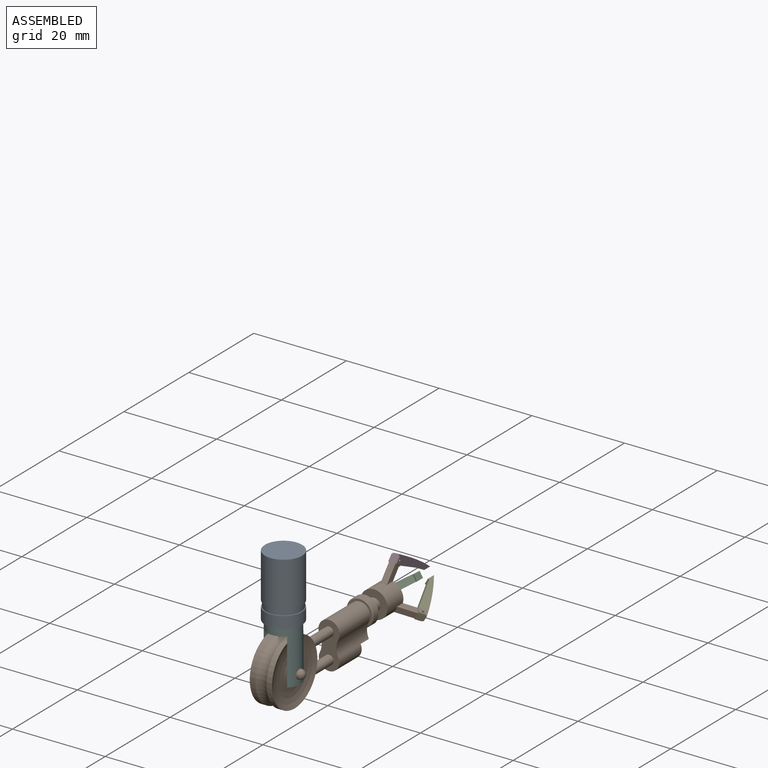
[diagram: assembled view]
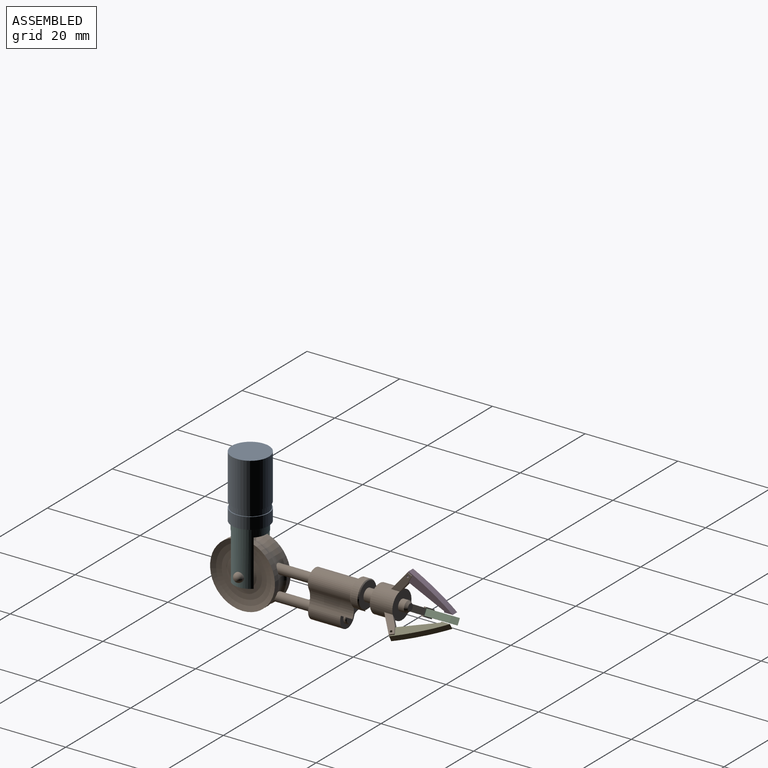
[diagram: assembled view, second angle]
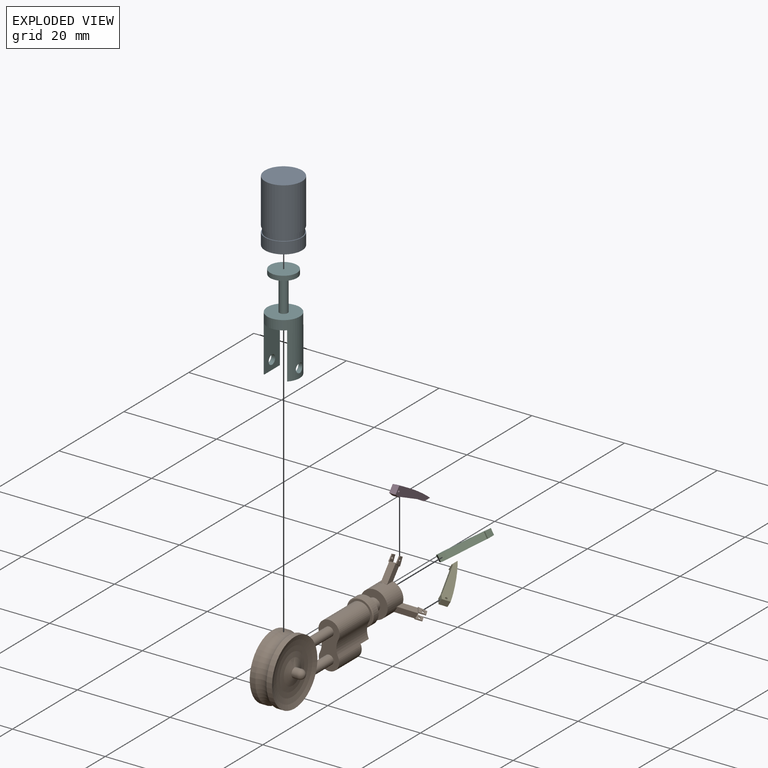
[diagram: exploded view]
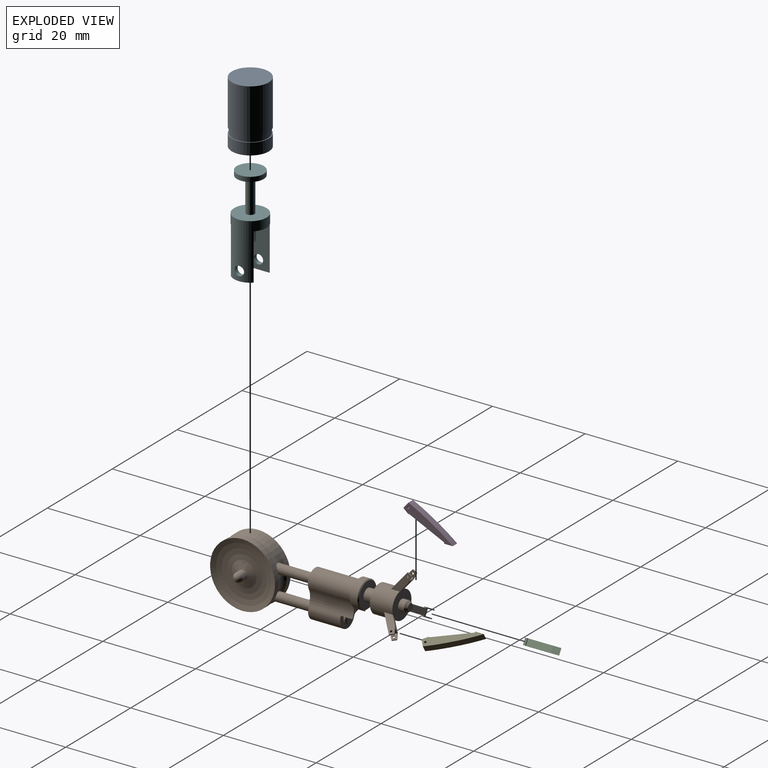
[diagram: exploded view, second angle]
ASSEMBLY  parts=6 mates=5
PART A: 11 faces, bbox 8x8x13.5 mm
  f0: plane 8x8mm, normal (0,0,1), area 50.3mm2, adj f1
  f1: cylinder r=4mm len=9.69mm, axis (0,0,1), area 243.4mm2, adj f0,f2
  f2: plane 8x8mm, normal (0,0,-1), area 4.6mm2, adj f1,f3
  f3: cylinder r=3.81mm len=7.62mm, axis (0,0,1), area 30.2mm2, adj f2,f4
  f4: plane 8x8mm, normal (0,0,1), area 4.6mm2, adj f3,f5
  f5: cylinder r=4mm len=8mm, axis (0,0,1), area 63.3mm2, adj f4,f6
  f6: plane 8x8mm, normal (0,0,-1), area 47.5mm2, adj f5,f7
  f7: cylinder r=0.94mm len=1.89mm, axis (0,0,1), area 5.9mm2, adj f6,f8
  f8: plane 6x6mm, normal (0,0,1), area 25.5mm2, adj f7,f9
  f9: cylinder r=3mm len=11.47mm, axis (0,0,1), area 216.1mm2, adj f8,f10
  f10: plane 6x6mm, normal (0,0,-1), area 28.3mm2, adj f9
PART B: 100 faces, bbox 13.2x43.2x16.9 mm
  f0: plane 0.91x0.51mm, normal (-0.77,0.46,-0.44), area 0.2mm2, adj f1,f2,f91,f93
  f1: plane 2.13x1.89mm, normal (-0.56,-0.76,-0.33), area 0.7mm2, adj f0,f85,f87,f88,f90,f91,f92,f93
  f2: plane 2.3x2.18mm, normal (0.4,0.89,0.23), area 1.1mm2, adj f0,f89,f90,f91,f92,f93,f94,f95
  f3: cylinder r=2.95mm len=5.91mm, axis (0,1,0), area 82mm2, adj f27,f28,f43,f45,f46,f47,f62,f64
  f4: plane 0.91x0.51mm, normal (0.77,0.46,-0.44), area 0.2mm2, adj f5,f6,f74,f76
  f5: plane 2.13x1.89mm, normal (0.56,-0.76,-0.33), area 0.7mm2, adj f4,f68,f70,f71,f73,f74,f75,f76
  f6: plane 2.3x2.18mm, normal (-0.4,0.89,0.23), area 1.1mm2, adj f4,f72,f73,f74,f75,f76,f77,f78
  f7: plane 0.91x0.47mm, normal (0,0.46,0.89), area 0.2mm2, adj f8,f9,f55,f57
  f8: plane 1.8x1.15mm, normal (0,-0.76,0.65), area 0.7mm2, adj f7,f49,f51,f52,f54,f55,f56,f57
  f9: plane 1.8x1.48mm, normal (0,0.89,-0.46), area 1.1mm2, adj f7,f53,f54,f55,f56,f57,f58,f59
  f10: plane 5.44x4.9mm, normal (0,-1,0), area 5.2mm2, adj f11,f33,f40,f42
  f11: cylinder r=2.28mm len=9.45mm, axis (0,1,0), area 88.7mm2, adj f10,f23,f40,f42
  f12: torus R=8.6mm, axis (-1,0,0), area 101.6mm2, adj f13,f20,f21,f22
  f13: cylinder r=7mm len=14mm, axis (-1,0,0), area 52.8mm2, adj f12,f14
  f14: torus R=4mm, axis (-1,0,0), area 154.6mm2, adj f13,f15
  f15: cylinder r=1mm len=2mm, axis (-1,0,0), area 7.5mm2, adj f14,f16
  f16: sphere r=1mm, area 6.3mm2, adj f15
  f17: sphere r=1mm, area 6.3mm2, adj f18
  f18: cylinder r=1mm len=2mm, axis (-1,0,0), area 7.5mm2, adj f17,f19
  f19: torus R=4mm, axis (-1,0,0), area 154.6mm2, adj f18,f20
  f20: cylinder r=7mm len=14mm, axis (-1,0,0), area 52.8mm2, adj f12,f19
  f21: cylinder r=1mm len=8.12mm, axis (0,-1,0), area 47.8mm2, adj f12,f23
  f22: cylinder r=1mm len=9.17mm, axis (0,-1,0), area 52.2mm2, adj f12,f23
  f23: plane 9.99x4.56mm, normal (0,-1,0), area 30.2mm2, adj f11,f21,f22,f34,f40,f42
  f24: plane 1.58x1.58mm, normal (0,1,0), area 1.9mm2, adj f25
  f25: cone r=0.79mm half-angle=35.2deg, axis (0,-1,0), area 4.2mm2, adj f24,f26
  f26: cylinder r=1.18mm len=2.36mm, axis (0,1,0), area 9.4mm2, adj f25,f27
  f27: plane 5.91x5.82mm, normal (0,1,0), area 22.7mm2, adj f3,f26,f45,f46,f48,f64,f65,f67
  f28: plane 5.91x5.91mm, normal (0,-1,0), area 21.8mm2, adj f3,f29
  f29: cylinder r=1.34mm len=2.67mm, axis (0,1,0), area 21.2mm2, adj f28,f30
  f30: plane 5.44x5.44mm, normal (0,1,0), area 17.7mm2, adj f29,f31
  f31: cone r=2.91mm half-angle=45deg, axis (0,-1,0), area 4.7mm2, adj f30,f32
  f32: cylinder r=2.91mm len=5.82mm, axis (0,1,0), area 27.7mm2, adj f31,f33
  f33: cone r=2.91mm half-angle=45deg, axis (0,1,0), area 4.7mm2, adj f10,f32,f39
  f34: cylinder r=2.21mm len=6.93mm, axis (0,-1,0), area 62.1mm2, adj f23,f35,f40,f42
  f35: plane 4.41x4.41mm, normal (0,1,0), area 10.3mm2, adj f34,f36,f41
  f36: cylinder r=1.26mm len=2.52mm, axis (0,-1,0), area 3.5mm2, adj f35,f37
  f37: cone r=1.07mm half-angle=45deg, axis (0,-1,0), area 2mm2, adj f36,f38
  f38: plane 2.14x2.14mm, normal (0,1,0), area 3.6mm2, adj f37
  f39: plane 3.95x2.34mm, normal (0,1,0), area 3.2mm2, adj f33,f40,f41,f42
  f40: cylinder r=3.78mm len=9.45mm, axis (0,-1,0), area 33.9mm2, adj f10,f11,f23,f34,f39,f41
  f41: cylinder r=2.21mm len=3.95mm, axis (0,-1,0), area 12.3mm2, adj f35,f39,f40,f42
  f42: cylinder r=3.78mm len=9.45mm, axis (0,-1,0), area 33.9mm2, adj f10,f11,f23,f34,f39,f41
  f43: plane 0.69x0.08mm, normal (0,-1,0), area 0mm2, adj f3,f44,f45
  f44: plane 1.39x0.09mm, normal (0,0,1), area 0.1mm2, adj f43,f45,f46,f47,f50
  f45: plane 3.71x3.16mm, normal (1,0,0), area 4.9mm2, adj f3,f27,f43,f44,f48,f49,f50,f51
  f46: plane 3.71x3.16mm, normal (-1,0,0), area 4.9mm2, adj f3,f27,f44,f47,f48,f49,f50,f52
  f47: plane 0.69x0.08mm, normal (0,-1,0), area 0mm2, adj f3,f44,f46
  f48: plane 2.22x1.86mm, normal (0,0.77,-0.64), area 4mm2, adj f27,f45,f46,f53
  f49: plane 1.39x0.03mm, normal (0,0.67,0.75), area 0.1mm2, adj f8,f45,f46,f50
  f50: plane 3.05x2.56mm, normal (0,-0.77,0.64), area 5.5mm2, adj f44,f45,f46,f49
  f51: plane 1.03x0.91mm, normal (0,-0.67,-0.75), area 0.3mm2, adj f8,f45,f53,f55
  f52: plane 1.03x0.91mm, normal (0,-0.67,-0.75), area 0.3mm2, adj f8,f46,f53,f56
  f53: plane 1.8x0.11mm, normal (0,0.77,-0.64), area 0.3mm2, adj f9,f48,f51,f52,f55,f56
  f54: plane 0.91x0.47mm, normal (0,0.46,0.89), area 0.2mm2, adj f8,f9,f56,f58
  f55: plane 2.06x1.89mm, normal (1,0,0), area 1.8mm2, adj f7,f8,f9,f51,f53,f61
  f56: plane 2.06x1.89mm, normal (-1,0,0), area 1.8mm2, adj f8,f9,f52,f53,f54,f60
  f57: plane 1.84x1.71mm, normal (-1,0,0), area 1.5mm2, adj f7,f8,f9,f59,f61
  f58: plane 1.84x1.71mm, normal (1,0,0), area 1.5mm2, adj f8,f9,f54,f59,f60
  f59: plane 1.39x1.2mm, normal (0,0.46,0.89), area 1.9mm2, adj f8,f9,f57,f58
  f60: cylinder r=0.24mm len=0.48mm, axis (1,0,0), area 0.3mm2, adj f56,f58
  f61: cylinder r=0.24mm len=0.48mm, axis (1,0,0), area 0.3mm2, adj f55,f57
  f62: plane 0.64x0.35mm, normal (0,-1,0), area 0mm2, adj f3,f63,f65
  f63: plane 1.2x0.69mm, normal (0.87,0,-0.5), area 0.1mm2, adj f62,f64,f65,f66,f69
  f64: plane 3.71x2.74mm, normal (-0.5,0,-0.87), area 4.9mm2, adj f3,f27,f63,f66,f67,f68,f69,f70
  f65: plane 3.71x2.74mm, normal (0.5,0,0.87), area 4.9mm2, adj f3,f27,f62,f63,f67,f68,f69,f71
  f66: plane 0.6x0.42mm, normal (0,-1,0), area 0mm2, adj f3,f63,f64
  f67: plane 2.62x2.31mm, normal (-0.56,0.77,0.32), area 4mm2, adj f27,f64,f65,f72
  f68: plane 1.22x0.72mm, normal (0.65,0.67,-0.37), area 0.1mm2, adj f5,f64,f65,f69
  f69: plane 3.34x2.73mm, normal (0.56,-0.77,-0.32), area 5.5mm2, adj f63,f64,f65,f68
  f70: plane 1.03x0.9mm, normal (-0.65,-0.67,0.37), area 0.3mm2, adj f5,f64,f72,f74
  f71: plane 1.03x0.9mm, normal (-0.65,-0.67,0.37), area 0.3mm2, adj f5,f65,f72,f75
  f72: plane 1.62x1mm, normal (-0.56,0.77,0.32), area 0.3mm2, adj f6,f67,f70,f71,f74,f75
  f73: plane 0.91x0.51mm, normal (0.77,0.46,-0.44), area 0.2mm2, adj f5,f6,f75,f77
  f74: plane 1.89x1.78mm, normal (-0.5,0,-0.87), area 1.8mm2, adj f4,f5,f6,f70,f72,f97
  f75: plane 1.89x1.78mm, normal (0.5,0,0.87), area 1.8mm2, adj f5,f6,f71,f72,f73,f96
  f76: plane 1.84x1.48mm, normal (0.5,0,0.87), area 1.5mm2, adj f4,f5,f6,f78,f97
  f77: plane 1.84x1.48mm, normal (-0.5,0,-0.87), area 1.5mm2, adj f5,f6,f73,f78,f96
  f78: plane 1.51x1.23mm, normal (0.77,0.46,-0.44), area 1.9mm2, adj f5,f6,f76,f77
  f79: plane 0.6x0.42mm, normal (0,-1,0), area 0mm2, adj f3,f80,f82
  f80: plane 1.2x0.69mm, normal (-0.87,0,-0.5), area 0.1mm2, adj f79,f81,f82,f83,f86
  f81: plane 3.71x2.74mm, normal (-0.5,0,0.87), area 4.9mm2, adj f3,f27,f80,f83,f84,f85,f86,f87
  f82: plane 3.71x2.74mm, normal (0.5,0,-0.87), area 4.9mm2, adj f3,f27,f79,f80,f84,f85,f86,f88
  f83: plane 0.64x0.35mm, normal (0,-1,0), area 0mm2, adj f3,f80,f81
  f84: plane 2.62x2.31mm, normal (0.56,0.77,0.32), area 4mm2, adj f27,f81,f82,f89
  f85: plane 1.22x0.72mm, normal (-0.65,0.67,-0.37), area 0.1mm2, adj f1,f81,f82,f86
  f86: plane 3.34x2.73mm, normal (-0.56,-0.77,-0.32), area 5.5mm2, adj f80,f81,f82,f85
  f87: plane 1.03x0.9mm, normal (0.65,-0.67,0.37), area 0.3mm2, adj f1,f81,f89,f91
  f88: plane 1.03x0.9mm, normal (0.65,-0.67,0.37), area 0.3mm2, adj f1,f82,f89,f92
  f89: plane 1.62x1mm, normal (0.56,0.77,0.32), area 0.3mm2, adj f2,f84,f87,f88,f91,f92
  f90: plane 0.91x0.51mm, normal (-0.77,0.46,-0.44), area 0.2mm2, adj f1,f2,f92,f94
  f91: plane 1.89x1.78mm, normal (-0.5,0,0.87), area 1.8mm2, adj f0,f1,f2,f87,f89,f99
  f92: plane 1.89x1.78mm, normal (0.5,0,-0.87), area 1.8mm2, adj f1,f2,f88,f89,f90,f98
  f93: plane 1.84x1.48mm, normal (0.5,0,-0.87), area 1.5mm2, adj f0,f1,f2,f95,f99
  f94: plane 1.84x1.48mm, normal (-0.5,0,0.87), area 1.5mm2, adj f1,f2,f90,f95,f98
  f95: plane 1.51x1.23mm, normal (-0.77,0.46,-0.44), area 1.9mm2, adj f1,f2,f93,f94
  f96: cylinder r=0.24mm len=0.52mm, axis (-0.5,0,-0.87), area 0.3mm2, adj f75,f77
  f97: cylinder r=0.24mm len=0.52mm, axis (-0.5,0,-0.87), area 0.3mm2, adj f74,f76
  f98: cylinder r=0.24mm len=0.52mm, axis (-0.5,0,0.87), area 0.3mm2, adj f92,f94
  f99: cylinder r=0.24mm len=0.52mm, axis (-0.5,0,0.87), area 0.3mm2, adj f91,f93
PART C: 10 faces, bbox 5.9x10.6x4.2 mm
  f0: plane 10.64x5.16mm, normal (-0.5,0,0.87), area 16.2mm2, adj f2,f3,f4,f5,f6,f7,f8,f9
  f1: plane 10.64x5.16mm, normal (0.5,0,-0.87), area 16.2mm2, adj f2,f3,f4,f5,f6,f7,f8,f9
  f2: plane 1.67x1.51mm, normal (0.65,-0.67,0.37), area 2mm2, adj f0,f1,f3,f8
  f3: plane 1.26x0.79mm, normal (0.56,0.77,0.32), area 0.2mm2, adj f0,f1,f2,f4
  f4: plane 7.65x3.78mm, normal (0.79,-0.42,0.45), area 11.7mm2, adj f0,f1,f3,f5
  f5: plane 1.33x0.91mm, normal (0,-1,0), area 0.3mm2, adj f0,f1,f4,f6
  f6: plane 1.84x1.2mm, normal (0.87,0,0.5), area 2.5mm2, adj f0,f1,f5,f7
  f7: extruded ~9.53x5.85mm, area 15.6mm2, adj f0,f1,f6,f8
  f8: plane 1.86x1.84mm, normal (-0.56,-0.77,-0.32), area 2.4mm2, adj f0,f1,f2,f7
  f9: cylinder r=0.24mm len=1.44mm, axis (-0.5,0,0.87), area 2.1mm2, adj f0,f1
PART D: 10 faces, bbox 1.4x10.6x6 mm
  f0: plane 10.64x5.96mm, normal (1,0,0), area 16.2mm2, adj f2,f3,f4,f5,f6,f7,f8,f9
  f1: plane 10.64x5.96mm, normal (-1,0,0), area 16.2mm2, adj f2,f3,f4,f5,f6,f7,f8,f9
  f2: plane 1.39x1.06mm, normal (0,-0.67,-0.75), area 2mm2, adj f0,f1,f3,f8
  f3: plane 1.39x0.11mm, normal (0,0.77,-0.64), area 0.2mm2, adj f0,f1,f2,f4
  f4: plane 7.65x3.56mm, normal (0,-0.42,-0.91), area 11.7mm2, adj f0,f1,f3,f5
  f5: plane 1.39x0.25mm, normal (0,-1,0), area 0.3mm2, adj f0,f1,f4,f6
  f6: plane 1.84x1.39mm, normal (0,0,-1), area 2.5mm2, adj f0,f1,f5,f7
  f7: extruded ~9.53x5.96mm, area 15.6mm2, adj f0,f1,f6,f8
  f8: plane 1.39x1.32mm, normal (0,-0.77,0.64), area 2.4mm2, adj f0,f1,f2,f7
  f9: cylinder r=0.24mm len=1.39mm, axis (1,0,0), area 2.1mm2, adj f0,f1
PART E: 10 faces, bbox 5.9x10.6x4.2 mm
  f0: plane 10.64x5.16mm, normal (-0.5,0,-0.87), area 16.2mm2, adj f2,f3,f4,f5,f6,f7,f8,f9
  f1: plane 10.64x5.16mm, normal (0.5,0,0.87), area 16.2mm2, adj f2,f3,f4,f5,f6,f7,f8,f9
  f2: plane 1.67x1.51mm, normal (-0.65,-0.67,0.37), area 2mm2, adj f0,f1,f3,f8
  f3: plane 1.26x0.79mm, normal (-0.56,0.77,0.32), area 0.2mm2, adj f0,f1,f2,f4
  f4: plane 7.65x3.78mm, normal (-0.79,-0.42,0.45), area 11.7mm2, adj f0,f1,f3,f5
  f5: plane 1.33x0.91mm, normal (0,-1,0), area 0.3mm2, adj f0,f1,f4,f6
  f6: plane 1.84x1.2mm, normal (-0.87,0,0.5), area 2.5mm2, adj f0,f1,f5,f7
  f7: extruded ~9.53x5.85mm, area 15.6mm2, adj f0,f1,f6,f8
  f8: plane 1.86x1.84mm, normal (0.56,-0.77,-0.32), area 2.4mm2, adj f0,f1,f2,f7
  f9: cylinder r=0.24mm len=1.44mm, axis (-0.5,0,-0.87), area 2.1mm2, adj f0,f1
PART F: 13 faces, bbox 7x7x20.4 mm
  f0: plane 4.9x1mm, normal (0,0,-1), area 3.4mm2, adj f5,f8
  f1: plane 5.8x5.8mm, normal (0,0,-1), area 23.9mm2, adj f2,f4
  f2: cylinder r=0.9mm len=7.37mm, axis (0,0,1), area 41.7mm2, adj f1,f7
  f3: plane 5.8x5.8mm, normal (0,0,1), area 26.4mm2, adj f4
  f4: cylinder r=2.9mm len=5.8mm, axis (0,0,1), area 18.2mm2, adj f1,f3
  f5: cylinder r=3.5mm len=12mm, axis (0,0,1), area 146.2mm2, adj f0,f6,f7,f8,f9,f10,f11,f12
  f6: plane 4.9x1mm, normal (0,0,-1), area 3.4mm2, adj f5,f9
  f7: plane 7x7mm, normal (0,0,1), area 35.9mm2, adj f2,f5
  f8: plane 10x4.9mm, normal (1,0,0), area 45.8mm2, adj f0,f5,f10,f12
  f9: plane 10x4.9mm, normal (-1,0,0), area 45.8mm2, adj f5,f6,f10,f11
  f10: plane 7x5mm, normal (0,0,-1), area 31.7mm2, adj f5,f8,f9
  f11: cylinder r=1mm len=2mm, axis (1,0,0), area 5.8mm2, adj f5,f9
  f12: cylinder r=1mm len=2mm, axis (1,0,0), area 5.8mm2, adj f5,f8
PLACE A t=(3.64,-25.94,-17.08)mm
PLACE B t=(3.64,-25.94,-13.67)mm
PLACE C t=(3.64,-25.94,-13.67)mm
PLACE D t=(3.64,-25.94,-13.67)mm
PLACE E t=(3.64,-25.94,-13.67)mm
PLACE F t=(3.64,-25.94,-13.67)mm
MATE revolute D.f9 <-> B.f60  axis (1,0,0) through (-104.66,8.59,-67.24)mm
MATE revolute E.f9 <-> B.f96  axis (0.5,0,0.87) through (-99.52,8.59,-76.14)mm
MATE revolute C.f9 <-> B.f98  axis (0.5,0,-0.87) through (-110.5,8.59,-77.35)mm
MATE cylindrical A.f1 <-> F.f2  axis (0,0,1) through (-105.37,-25.94,-57.21)mm
MATE revolute B.f12 <-> F.f11  axis (-1,0,0) through (-101.76,-25.94,-75.58)mm
